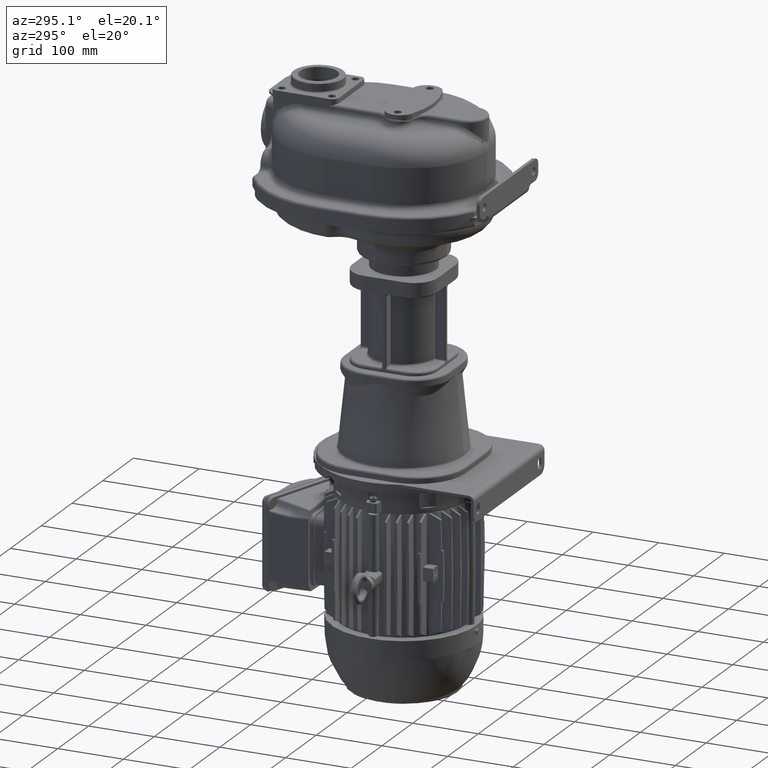
[diagram: clean part render]
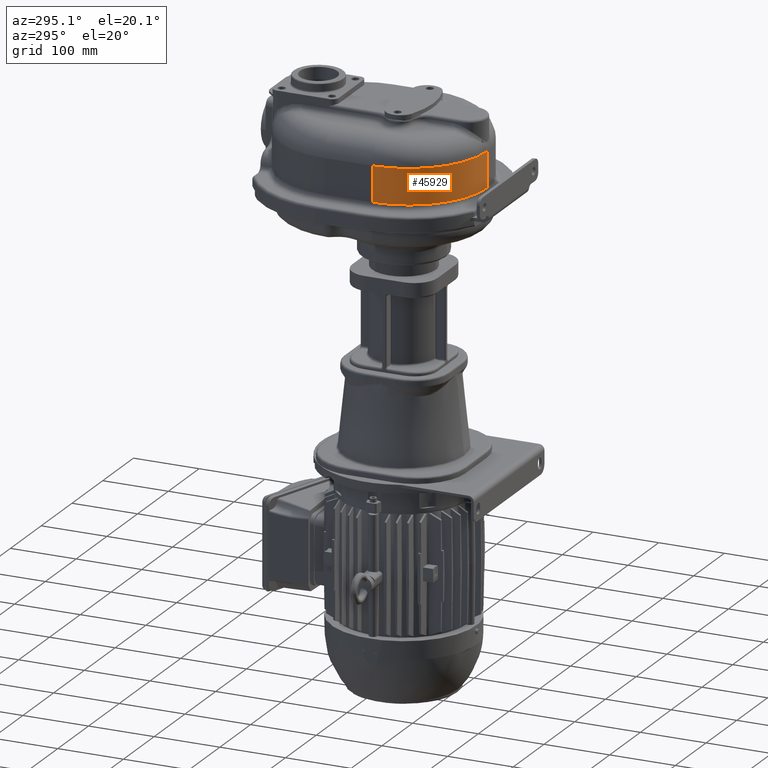
[diagram: same view with one face highlighted and labeled with its STEP entity id]
A machine part, auxiliary view. The second image highlights one B-rep face of the part: STEP entity #45929.
In plain terms, the highlighted cylindrical surface (partial cylindrical patch) has radius 119 mm, axis along (0, 0, -1).
Its self-contained STEP definition (entity closure, byte-faithful):
#602=DIRECTION('',(0.E0,0.E0,-1.E0));
#603=VECTOR('',#602,5.35E1);
#604=CARTESIAN_POINT('',(-1.14E2,1.55E2,4.8E1));
#605=LINE('',#604,#603);
#611=CARTESIAN_POINT('',(5.E0,1.55E2,-5.5E0));
#612=DIRECTION('',(0.E0,0.E0,1.E0));
#613=DIRECTION('',(-1.E0,0.E0,0.E0));
#614=AXIS2_PLACEMENT_3D('',#611,#612,#613);
#616=CARTESIAN_POINT('',(5.E0,1.55E2,4.8E1));
#617=DIRECTION('',(0.E0,0.E0,1.E0));
#618=DIRECTION('',(-1.E0,0.E0,0.E0));
#619=AXIS2_PLACEMENT_3D('',#616,#617,#618);
#621=DIRECTION('',(0.E0,0.E0,-1.E0));
#622=VECTOR('',#621,5.35E1);
#623=CARTESIAN_POINT('',(4.999999999999E0,3.6E1,4.8E1));
#624=LINE('',#623,#622);
#37088=CARTESIAN_POINT('',(4.999999999999E0,3.6E1,4.8E1));
#37089=VERTEX_POINT('',#37088);
#37090=CARTESIAN_POINT('',(-1.14E2,1.55E2,4.8E1));
#37091=VERTEX_POINT('',#37090);
#37233=CARTESIAN_POINT('',(-1.14E2,1.55E2,-5.5E0));
#37234=VERTEX_POINT('',#37233);
#37237=CARTESIAN_POINT('',(5.E0,3.6E1,-5.5E0));
#37238=VERTEX_POINT('',#37237);
#45917=CARTESIAN_POINT('',(5.E0,1.55E2,-2.35E1));
#45918=DIRECTION('',(0.E0,0.E0,-1.E0));
#45919=DIRECTION('',(-1.E0,0.E0,0.E0));
#45920=AXIS2_PLACEMENT_3D('',#45917,#45918,#45919);
#45921=CYLINDRICAL_SURFACE('',#45920,1.19E2);
#45922=ORIENTED_EDGE('',*,*,#45872,.F.);
#45923=ORIENTED_EDGE('',*,*,#45900,.F.);
#45924=ORIENTED_EDGE('',*,*,#44880,.T.);
#45926=ORIENTED_EDGE('',*,*,#45925,.T.);
#45927=EDGE_LOOP('',(#45922,#45923,#45924,#45926));
#45928=FACE_OUTER_BOUND('',#45927,.F.);
#45929=ADVANCED_FACE('',(#45928),#45921,.T.);
#615=CIRCLE('',#614,1.19E2);
#620=CIRCLE('',#619,1.19E2);
#44880=EDGE_CURVE('',#37091,#37089,#620,.T.);
#45872=EDGE_CURVE('',#37234,#37238,#615,.T.);
#45900=EDGE_CURVE('',#37091,#37234,#605,.T.);
#45925=EDGE_CURVE('',#37089,#37238,#624,.T.);